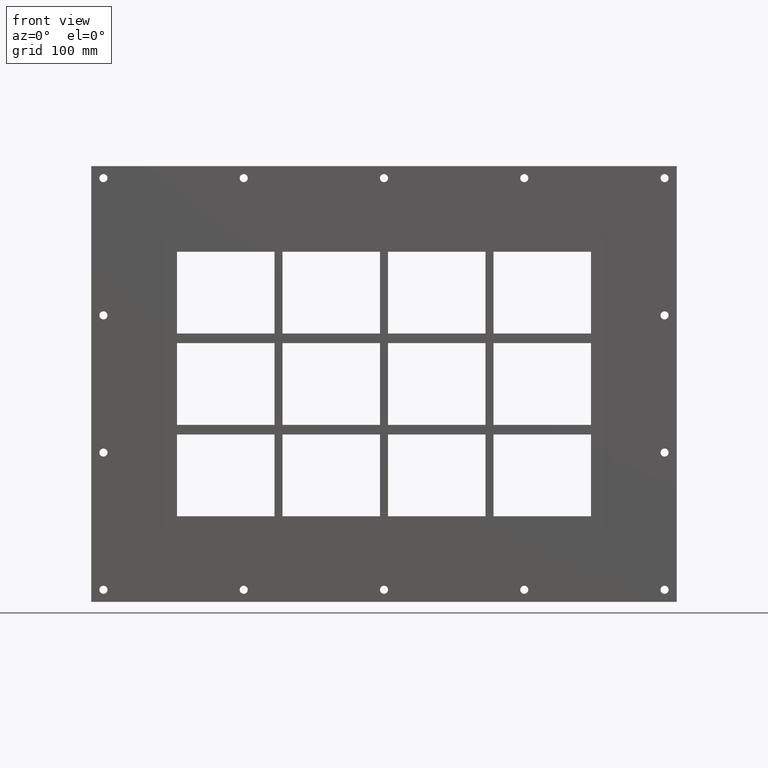
[diagram: clean part render]
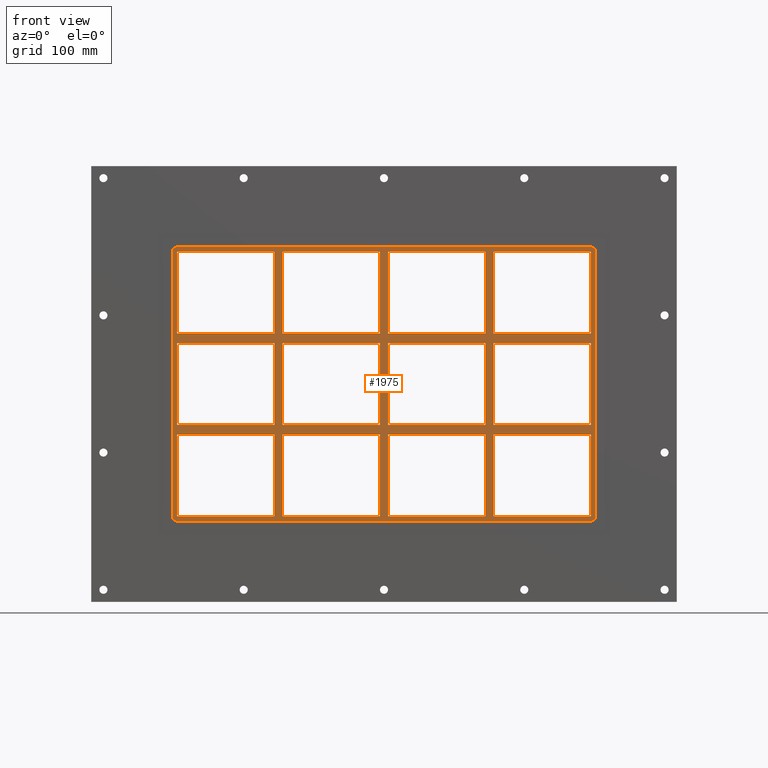
[diagram: same view with one face highlighted and labeled with its STEP entity id]
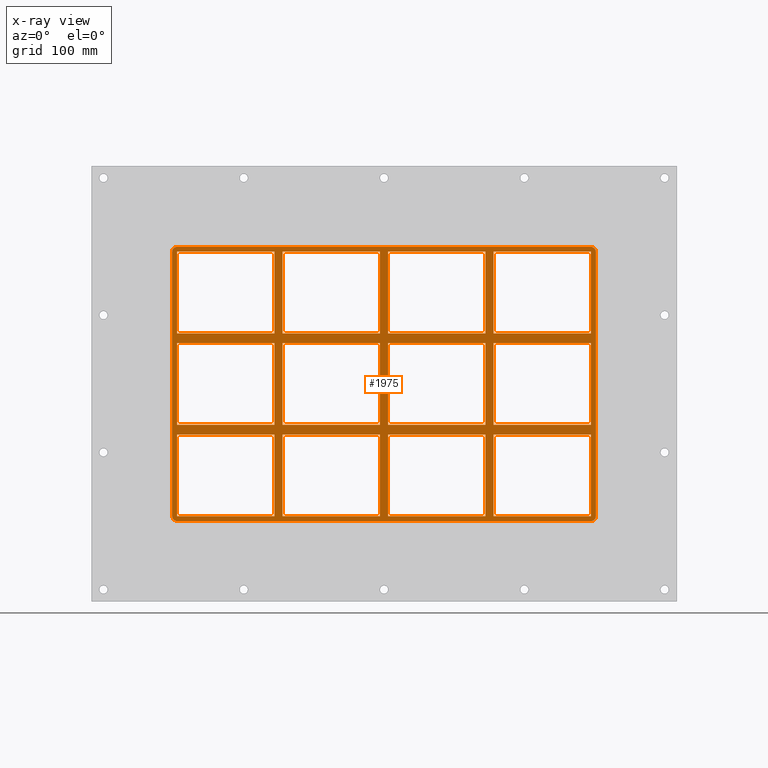
[diagram: x-ray of the same camera — body ghosted, the highlighted face saturated]
A machine part, front view. The second image highlights one B-rep face of the part: STEP entity #1975.
The next image is the same camera in x-ray: the body ghosted, the highlighted face saturated — about 0% of this face is hidden behind the body in this view.
In plain terms, the highlighted planar face has unit normal (0, 1, 0).
Its self-contained STEP definition (entity closure, byte-faithful):
#465=CARTESIAN_POINT('',(-135.50000000000136,-3.0,50.499999999990628));
#466=VERTEX_POINT('',#465);
#475=CARTESIAN_POINT('',(-255.99999999999972,-3.0,50.499999999990628));
#476=VERTEX_POINT('',#475);
#477=CARTESIAN_POINT('',(-135.50000000000136,-3.0,50.499999999990649));
#478=DIRECTION('',(-1.0,0.0,0.0));
#479=VECTOR('',#478,120.49999999999841);
#480=LINE('',#477,#479);
#481=EDGE_CURVE('',#466,#476,#480,.T.);
#505=CARTESIAN_POINT('',(-5.00000000000135,-3.0,50.499999999990671));
#506=VERTEX_POINT('',#505);
#515=CARTESIAN_POINT('',(-125.49999999999272,-3.0,50.499999999990649));
#516=VERTEX_POINT('',#515);
#517=CARTESIAN_POINT('',(-5.000000000001364,-3.0,50.499999999990678));
#518=DIRECTION('',(-1.0,0.0,0.0));
#519=VECTOR('',#518,120.49999999999136);
#520=LINE('',#517,#519);
#521=EDGE_CURVE('',#506,#516,#520,.T.);
#547=CARTESIAN_POINT('',(135.50000000000728,-3.0,50.499999999990699));
#548=VERTEX_POINT('',#547);
#563=CARTESIAN_POINT('',(256.00000000000364,-3.0,50.49999999999072));
#564=VERTEX_POINT('',#563);
#571=CARTESIAN_POINT('',(256.00000000000364,-3.0,50.49999999999072));
#572=DIRECTION('',(-1.0,0.0,0.0));
#573=VECTOR('',#572,120.49999999999636);
#574=LINE('',#571,#573);
#575=EDGE_CURVE('',#564,#548,#574,.T.);
#585=CARTESIAN_POINT('',(125.49999999999866,-3.0,50.499999999990692));
#586=VERTEX_POINT('',#585);
#595=CARTESIAN_POINT('',(5.000000000007283,-3.0,50.499999999990671));
#596=VERTEX_POINT('',#595);
#597=CARTESIAN_POINT('',(125.49999999999866,-3.0,50.499999999990699));
#598=DIRECTION('',(-1.0,0.0,0.0));
#599=VECTOR('',#598,120.49999999999139);
#600=LINE('',#597,#599);
#601=EDGE_CURVE('',#586,#596,#600,.T.);
#627=CARTESIAN_POINT('',(-135.50000000000136,-3.0,62.499999999999893));
#628=VERTEX_POINT('',#627);
#643=CARTESIAN_POINT('',(-255.99999999999972,-3.0,62.499999999999893));
#644=VERTEX_POINT('',#643);
#651=CARTESIAN_POINT('',(-255.99999999999972,-3.0,62.499999999999893));
#652=DIRECTION('',(1.0,0.0,0.0));
#653=VECTOR('',#652,120.49999999999838);
#654=LINE('',#651,#653);
#655=EDGE_CURVE('',#644,#628,#654,.T.);
#665=CARTESIAN_POINT('',(135.50000000000728,-3.0,62.499999999999893));
#666=VERTEX_POINT('',#665);
#675=CARTESIAN_POINT('',(255.99999999999991,-3.0,62.499999999999893));
#676=VERTEX_POINT('',#675);
#677=CARTESIAN_POINT('',(135.50000000000733,-3.0,62.499999999999893));
#678=DIRECTION('',(1.0,0.0,0.0));
#679=VECTOR('',#678,120.49999999999255);
#680=LINE('',#677,#679);
#681=EDGE_CURVE('',#666,#676,#680,.T.);
#707=CARTESIAN_POINT('',(-5.00000000000135,-3.0,62.499999999999893));
#708=VERTEX_POINT('',#707);
#723=CARTESIAN_POINT('',(-125.49999999999272,-3.0,62.499999999999893));
#724=VERTEX_POINT('',#723);
#731=CARTESIAN_POINT('',(-125.49999999999272,-3.0,62.499999999999893));
#732=DIRECTION('',(1.0,0.0,0.0));
#733=VECTOR('',#732,120.49999999999139);
#734=LINE('',#731,#733);
#735=EDGE_CURVE('',#724,#708,#734,.T.);
#747=CARTESIAN_POINT('',(125.49999999999862,-3.0,62.499999999999893));
#748=VERTEX_POINT('',#747);
#763=CARTESIAN_POINT('',(5.000000000007283,-3.0,62.499999999999893));
#764=VERTEX_POINT('',#763);
#771=CARTESIAN_POINT('',(5.000000000007276,-3.0,62.499999999999893));
#772=DIRECTION('',(1.0,0.0,0.0));
#773=VECTOR('',#772,120.49999999999136);
#774=LINE('',#771,#773);
#775=EDGE_CURVE('',#764,#748,#774,.T.);
#794=CARTESIAN_POINT('',(-256.0,-3.0,163.49999999999997));
#795=VERTEX_POINT('',#794);
#802=CARTESIAN_POINT('',(-256.0,-3.0,62.499999999999886));
#803=DIRECTION('',(0.0,0.0,1.0));
#804=VECTOR('',#803,101.00000000000009);
#805=LINE('',#802,#804);
#806=EDGE_CURVE('',#644,#795,#805,.T.);
#825=CARTESIAN_POINT('',(255.99999999999991,-3.0,-50.500000000000114));
#826=VERTEX_POINT('',#825);
#833=CARTESIAN_POINT('',(256.0,-3.0,50.499999999990706));
#834=DIRECTION('',(0.0,0.0,-1.0));
#835=VECTOR('',#834,100.99999999999082);
#836=LINE('',#833,#835);
#837=EDGE_CURVE('',#564,#826,#836,.T.);
#848=CARTESIAN_POINT('',(256.0,-3.0,163.49999999999997));
#849=VERTEX_POINT('',#848);
#850=CARTESIAN_POINT('',(256.0,-3.0,163.49999999999997));
#851=DIRECTION('',(0.0,0.0,-1.0));
#852=VECTOR('',#851,101.00000000000009);
#853=LINE('',#850,#852);
#854=EDGE_CURVE('',#849,#676,#853,.T.);
#879=CARTESIAN_POINT('',(125.49999999999864,-3.0,163.49999999999997));
#880=VERTEX_POINT('',#879);
#881=CARTESIAN_POINT('',(125.49999999999865,-3.0,62.499999999999886));
#882=DIRECTION('',(0.0,0.0,1.0));
#883=VECTOR('',#882,101.00000000000006);
#884=LINE('',#881,#883);
#885=EDGE_CURVE('',#748,#880,#884,.T.);
#918=CARTESIAN_POINT('',(135.50000000000728,-3.0,163.49999999999997));
#919=VERTEX_POINT('',#918);
#926=CARTESIAN_POINT('',(135.50000000000728,-3.0,163.49999999999997));
#927=DIRECTION('',(0.0,0.0,-1.0));
#928=VECTOR('',#927,101.00000000000009);
#929=LINE('',#926,#928);
#930=EDGE_CURVE('',#919,#666,#929,.T.);
#941=CARTESIAN_POINT('',(-5.000000000001368,-3.0,163.49999999999997));
#942=VERTEX_POINT('',#941);
#943=CARTESIAN_POINT('',(-5.000000000001351,-3.0,62.499999999999886));
#944=DIRECTION('',(0.0,0.0,1.0));
#945=VECTOR('',#944,101.00000000000006);
#946=LINE('',#943,#945);
#947=EDGE_CURVE('',#708,#942,#946,.T.);
#980=CARTESIAN_POINT('',(5.000000000007283,-3.0,163.49999999999997));
#981=VERTEX_POINT('',#980);
#988=CARTESIAN_POINT('',(5.000000000007283,-3.0,163.49999999999997));
#989=DIRECTION('',(0.0,0.0,-1.0));
#990=VECTOR('',#989,101.00000000000009);
#991=LINE('',#988,#990);
#992=EDGE_CURVE('',#981,#764,#991,.T.);
#1003=CARTESIAN_POINT('',(-135.50000000000136,-3.0,163.49999999999997));
#1004=VERTEX_POINT('',#1003);
#1005=CARTESIAN_POINT('',(-135.50000000000134,-3.0,62.499999999999886));
#1006=DIRECTION('',(0.0,0.0,1.0));
#1007=VECTOR('',#1006,101.00000000000006);
#1008=LINE('',#1005,#1007);
#1009=EDGE_CURVE('',#628,#1004,#1008,.T.);
#1042=CARTESIAN_POINT('',(-135.50000000000134,-3.0,-50.500000000000114));
#1043=VERTEX_POINT('',#1042);
#1050=CARTESIAN_POINT('',(-135.50000000000134,-3.0,-50.500000000000114));
#1051=DIRECTION('',(0.0,0.0,1.0));
#1052=VECTOR('',#1051,100.99999999999073);
#1053=LINE('',#1050,#1052);
#1054=EDGE_CURVE('',#1043,#466,#1053,.T.);
#1073=CARTESIAN_POINT('',(-125.49999999999272,-3.0,163.49999999999997));
#1074=VERTEX_POINT('',#1073);
#1081=CARTESIAN_POINT('',(-125.49999999999272,-3.0,163.49999999999997));
#1082=DIRECTION('',(0.0,0.0,-1.0));
#1083=VECTOR('',#1082,101.00000000000009);
#1084=LINE('',#1081,#1083);
#1085=EDGE_CURVE('',#1074,#724,#1084,.T.);
#1439=CARTESIAN_POINT('',(125.49999999999868,-3.0,-50.500000000000114));
#1440=VERTEX_POINT('',#1439);
#1447=CARTESIAN_POINT('',(125.49999999999868,-3.0,-50.500000000000114));
#1448=DIRECTION('',(0.0,0.0,1.0));
#1449=VECTOR('',#1448,100.99999999999079);
#1450=LINE('',#1447,#1449);
#1451=EDGE_CURVE('',#1440,#586,#1450,.T.);
#1461=CARTESIAN_POINT('',(125.49999999999868,-3.0,-62.500000000009308));
#1462=VERTEX_POINT('',#1461);
#1470=CARTESIAN_POINT('',(125.49999999999869,-3.0,-163.50000000000006));
#1471=VERTEX_POINT('',#1470);
#1478=CARTESIAN_POINT('',(125.49999999999869,-3.0,-163.50000000000006));
#1479=DIRECTION('',(0.0,0.0,1.0));
#1480=VECTOR('',#1479,100.99999999999073);
#1481=LINE('',#1478,#1480);
#1482=EDGE_CURVE('',#1471,#1462,#1481,.T.);
#1493=CARTESIAN_POINT('',(135.50000000000728,-3.0,-50.500000000000114));
#1494=VERTEX_POINT('',#1493);
#1495=CARTESIAN_POINT('',(135.50000000000728,-3.0,50.499999999990692));
#1496=DIRECTION('',(0.0,0.0,-1.0));
#1497=VECTOR('',#1496,100.99999999999081);
#1498=LINE('',#1495,#1497);
#1499=EDGE_CURVE('',#548,#1494,#1498,.T.);
#1516=CARTESIAN_POINT('',(135.50000000000728,-3.0,-62.500000000009308));
#1517=VERTEX_POINT('',#1516);
#1524=CARTESIAN_POINT('',(135.50000000000728,-3.0,-163.49999999998431));
#1525=VERTEX_POINT('',#1524);
#1526=CARTESIAN_POINT('',(135.50000000000728,-3.0,-62.500000000009322));
#1527=DIRECTION('',(0.0,0.0,-1.0));
#1528=VECTOR('',#1527,100.99999999997496);
#1529=LINE('',#1526,#1528);
#1530=EDGE_CURVE('',#1517,#1525,#1529,.T.);
#1549=CARTESIAN_POINT('',(-5.000000000001333,-3.0,-50.500000000000114));
#1550=VERTEX_POINT('',#1549);
#1557=CARTESIAN_POINT('',(-5.000000000001333,-3.0,-50.500000000000114));
#1558=DIRECTION('',(0.0,0.0,1.0));
#1559=VECTOR('',#1558,100.99999999999076);
#1560=LINE('',#1557,#1559);
#1561=EDGE_CURVE('',#1550,#506,#1560,.T.);
#1571=CARTESIAN_POINT('',(-5.000000000001331,-3.0,-62.500000000009344));
#1572=VERTEX_POINT('',#1571);
#1580=CARTESIAN_POINT('',(-5.000000000001315,-3.0,-163.50000000000006));
#1581=VERTEX_POINT('',#1580);
#1588=CARTESIAN_POINT('',(-5.000000000001315,-3.0,-163.50000000000006));
#1589=DIRECTION('',(0.0,0.0,1.0));
#1590=VECTOR('',#1589,100.99999999999071);
#1591=LINE('',#1588,#1590);
#1592=EDGE_CURVE('',#1581,#1572,#1591,.T.);
#1603=CARTESIAN_POINT('',(5.000000000007283,-3.0,-50.500000000000114));
#1604=VERTEX_POINT('',#1603);
#1605=CARTESIAN_POINT('',(5.000000000007283,-3.0,50.499999999990649));
#1606=DIRECTION('',(0.0,0.0,-1.0));
#1607=VECTOR('',#1606,100.99999999999076);
#1608=LINE('',#1605,#1607);
#1609=EDGE_CURVE('',#596,#1604,#1608,.T.);
#1626=CARTESIAN_POINT('',(5.000000000007283,-3.0,-62.500000000009308));
#1627=VERTEX_POINT('',#1626);
#1634=CARTESIAN_POINT('',(5.000000000007283,-3.0,-163.49999999998431));
#1635=VERTEX_POINT('',#1634);
#1636=CARTESIAN_POINT('',(5.000000000007283,-3.0,-62.500000000009322));
#1637=DIRECTION('',(0.0,0.0,-1.0));
#1638=VECTOR('',#1637,100.99999999997496);
#1639=LINE('',#1636,#1638);
#1640=EDGE_CURVE('',#1627,#1635,#1639,.T.);
#1659=CARTESIAN_POINT('',(-125.49999999999272,-3.0,-163.49999999998431));
#1660=VERTEX_POINT('',#1659);
#1667=CARTESIAN_POINT('',(-5.000000000001307,-3.0,-163.50000000000006));
#1668=DIRECTION('',(-1.0,0.0,0.0));
#1669=VECTOR('',#1668,120.49999999999142);
#1670=LINE('',#1667,#1669);
#1671=EDGE_CURVE('',#1581,#1660,#1670,.T.);
#1684=CARTESIAN_POINT('',(125.49999999999869,-3.0,-163.50000000000006));
#1685=DIRECTION('',(-1.0,0.0,0.0));
#1686=VECTOR('',#1685,120.49999999999142);
#1687=LINE('',#1684,#1686);
#1688=EDGE_CURVE('',#1471,#1635,#1687,.T.);
#1699=CARTESIAN_POINT('',(256.0,-3.0,-163.50000000000006));
#1700=VERTEX_POINT('',#1699);
#1701=CARTESIAN_POINT('',(256.0,-3.0,-163.50000000000006));
#1702=DIRECTION('',(-1.0,0.0,0.0));
#1703=VECTOR('',#1702,120.49999999999272);
#1704=LINE('',#1701,#1703);
#1705=EDGE_CURVE('',#1700,#1525,#1704,.T.);
#1717=CARTESIAN_POINT('',(0.0,-3.0,0.0));
#1718=DIRECTION('',(0.0,1.0,0.0));
#1719=DIRECTION('',(0.0,0.0,1.0));
#1720=AXIS2_PLACEMENT_3D('',#1717,#1718,#1719);
#1721=PLANE('',#1720);
#1722=CARTESIAN_POINT('',(262.0,-3.0,-163.5));
#1723=VERTEX_POINT('',#1722);
#1724=CARTESIAN_POINT('',(256.0,-3.0,-169.50000000000003));
#1725=VERTEX_POINT('',#1724);
#1726=CARTESIAN_POINT('',(256.0,-3.0,-163.5));
#1727=DIRECTION('',(0.0,1.0,0.0));
#1728=DIRECTION('',(0.707106781186548,0.0,-0.707106781186548));
#1729=AXIS2_PLACEMENT_3D('',#1726,#1727,#1728);
#1730=CIRCLE('',#1729,6.000000000000002);
#1731=EDGE_CURVE('',#1723,#1725,#1730,.T.);
#1732=ORIENTED_EDGE('',*,*,#1731,.F.);
#1733=CARTESIAN_POINT('',(262.0,-3.0,163.5));
#1734=VERTEX_POINT('',#1733);
#1735=CARTESIAN_POINT('',(262.0,-3.0,-163.50000000000003));
#1736=DIRECTION('',(0.0,0.0,1.0));
#1737=VECTOR('',#1736,327.0);
#1738=LINE('',#1735,#1737);
#1739=EDGE_CURVE('',#1723,#1734,#1738,.T.);
#1740=ORIENTED_EDGE('',*,*,#1739,.T.);
#1741=CARTESIAN_POINT('',(256.0,-3.0,169.50000000000003));
#1742=VERTEX_POINT('',#1741);
#1743=CARTESIAN_POINT('',(256.0,-3.0,163.5));
#1744=DIRECTION('',(0.0,1.0,0.0));
#1745=DIRECTION('',(0.707106781186548,0.0,0.707106781186548));
#1746=AXIS2_PLACEMENT_3D('',#1743,#1744,#1745);
#1747=CIRCLE('',#1746,6.000000000000002);
#1748=EDGE_CURVE('',#1742,#1734,#1747,.T.);
#1749=ORIENTED_EDGE('',*,*,#1748,.F.);
#1750=CARTESIAN_POINT('',(-256.0,-3.0,169.50000000000003));
#1751=VERTEX_POINT('',#1750);
#1752=CARTESIAN_POINT('',(256.0,-3.0,169.50000000000003));
#1753=DIRECTION('',(-1.0,0.0,0.0));
#1754=VECTOR('',#1753,512.0);
#1755=LINE('',#1752,#1754);
#1756=EDGE_CURVE('',#1742,#1751,#1755,.T.);
#1757=ORIENTED_EDGE('',*,*,#1756,.T.);
#1758=CARTESIAN_POINT('',(-262.0,-3.0,163.5));
#1759=VERTEX_POINT('',#1758);
#1760=CARTESIAN_POINT('',(-256.0,-3.0,163.5));
#1761=DIRECTION('',(0.0,1.0,0.0));
#1762=DIRECTION('',(-0.707106781186548,0.0,0.707106781186548));
#1763=AXIS2_PLACEMENT_3D('',#1760,#1761,#1762);
#1764=CIRCLE('',#1763,6.000000000000002);
#1765=EDGE_CURVE('',#1759,#1751,#1764,.T.);
#1766=ORIENTED_EDGE('',*,*,#1765,.F.);
#1767=CARTESIAN_POINT('',(-262.0,-3.0,-163.5));
#1768=VERTEX_POINT('',#1767);
#1769=CARTESIAN_POINT('',(-262.0,-3.0,163.50000000000003));
#1770=DIRECTION('',(0.0,0.0,-1.0));
#1771=VECTOR('',#1770,327.0);
#1772=LINE('',#1769,#1771);
#1773=EDGE_CURVE('',#1759,#1768,#1772,.T.);
#1774=ORIENTED_EDGE('',*,*,#1773,.T.);
#1775=CARTESIAN_POINT('',(-256.0,-3.0,-169.50000000000003));
#1776=VERTEX_POINT('',#1775);
#1777=CARTESIAN_POINT('',(-256.0,-3.0,-163.5));
#1778=DIRECTION('',(0.0,1.0,0.0));
#1779=DIRECTION('',(-0.707106781186548,0.0,-0.707106781186548));
#1780=AXIS2_PLACEMENT_3D('',#1777,#1778,#1779);
#1781=CIRCLE('',#1780,6.000000000000002);
#1782=EDGE_CURVE('',#1776,#1768,#1781,.T.);
#1783=ORIENTED_EDGE('',*,*,#1782,.F.);
#1784=CARTESIAN_POINT('',(-256.0,-3.0,-169.50000000000003));
#1785=DIRECTION('',(1.0,0.0,0.0));
#1786=VECTOR('',#1785,512.0);
#1787=LINE('',#1784,#1786);
#1788=EDGE_CURVE('',#1776,#1725,#1787,.T.);
#1789=ORIENTED_EDGE('',*,*,#1788,.T.);
#1790=EDGE_LOOP('',(#1732,#1740,#1749,#1757,#1766,#1774,#1783,#1789));
#1791=FACE_OUTER_BOUND('',#1790,.T.);
#1792=ORIENTED_EDGE('',*,*,#806,.T.);
#1793=CARTESIAN_POINT('',(-256.0,-3.0,163.5));
#1794=DIRECTION('',(1.0,0.0,0.0));
#1795=VECTOR('',#1794,120.49999999999864);
#1796=LINE('',#1793,#1795);
#1797=EDGE_CURVE('',#795,#1004,#1796,.T.);
#1798=ORIENTED_EDGE('',*,*,#1797,.T.);
#1799=ORIENTED_EDGE('',*,*,#1009,.F.);
#1800=ORIENTED_EDGE('',*,*,#655,.F.);
#1801=EDGE_LOOP('',(#1792,#1798,#1799,#1800));
#1802=FACE_BOUND('',#1801,.T.);
#1803=ORIENTED_EDGE('',*,*,#837,.T.);
#1804=CARTESIAN_POINT('',(135.50000000000733,-3.0,-50.500000000000114));
#1805=DIRECTION('',(1.0,0.0,0.0));
#1806=VECTOR('',#1805,120.49999999999255);
#1807=LINE('',#1804,#1806);
#1808=EDGE_CURVE('',#1494,#826,#1807,.T.);
#1809=ORIENTED_EDGE('',*,*,#1808,.F.);
#1810=ORIENTED_EDGE('',*,*,#1499,.F.);
#1811=ORIENTED_EDGE('',*,*,#575,.F.);
#1812=EDGE_LOOP('',(#1803,#1809,#1810,#1811));
#1813=FACE_BOUND('',#1812,.T.);
#1814=ORIENTED_EDGE('',*,*,#1451,.F.);
#1815=CARTESIAN_POINT('',(5.000000000007276,-3.0,-50.500000000000114));
#1816=DIRECTION('',(1.0,0.0,0.0));
#1817=VECTOR('',#1816,120.49999999999142);
#1818=LINE('',#1815,#1817);
#1819=EDGE_CURVE('',#1604,#1440,#1818,.T.);
#1820=ORIENTED_EDGE('',*,*,#1819,.F.);
#1821=ORIENTED_EDGE('',*,*,#1609,.F.);
#1822=ORIENTED_EDGE('',*,*,#601,.F.);
#1823=EDGE_LOOP('',(#1814,#1820,#1821,#1822));
#1824=FACE_BOUND('',#1823,.T.);
#1825=ORIENTED_EDGE('',*,*,#1561,.F.);
#1826=CARTESIAN_POINT('',(-125.49999999999272,-3.0,-50.500000000000114));
#1827=VERTEX_POINT('',#1826);
#1828=CARTESIAN_POINT('',(-125.49999999999272,-3.0,-50.500000000000114));
#1829=DIRECTION('',(1.0,0.0,0.0));
#1830=VECTOR('',#1829,120.49999999999139);
#1831=LINE('',#1828,#1830);
#1832=EDGE_CURVE('',#1827,#1550,#1831,.T.);
#1833=ORIENTED_EDGE('',*,*,#1832,.F.);
#1834=CARTESIAN_POINT('',(-125.49999999999272,-3.0,50.499999999990635));
#1835=DIRECTION('',(0.0,0.0,-1.0));
#1836=VECTOR('',#1835,100.99999999999075);
#1837=LINE('',#1834,#1836);
#1838=EDGE_CURVE('',#516,#1827,#1837,.T.);
#1839=ORIENTED_EDGE('',*,*,#1838,.F.);
#1840=ORIENTED_EDGE('',*,*,#521,.F.);
#1841=EDGE_LOOP('',(#1825,#1833,#1839,#1840));
#1842=FACE_BOUND('',#1841,.T.);
#1843=ORIENTED_EDGE('',*,*,#775,.F.);
#1844=ORIENTED_EDGE('',*,*,#992,.F.);
#1845=CARTESIAN_POINT('',(5.000000000007276,-3.0,163.5));
#1846=DIRECTION('',(1.0,0.0,0.0));
#1847=VECTOR('',#1846,120.49999999999139);
#1848=LINE('',#1845,#1847);
#1849=EDGE_CURVE('',#981,#880,#1848,.T.);
#1850=ORIENTED_EDGE('',*,*,#1849,.T.);
#1851=ORIENTED_EDGE('',*,*,#885,.F.);
#1852=EDGE_LOOP('',(#1843,#1844,#1850,#1851));
#1853=FACE_BOUND('',#1852,.T.);
#1854=ORIENTED_EDGE('',*,*,#735,.F.);
#1855=ORIENTED_EDGE('',*,*,#1085,.F.);
#1856=CARTESIAN_POINT('',(-125.49999999999272,-3.0,163.5));
#1857=DIRECTION('',(1.0,0.0,0.0));
#1858=VECTOR('',#1857,120.49999999999136);
#1859=LINE('',#1856,#1858);
#1860=EDGE_CURVE('',#1074,#942,#1859,.T.);
#1861=ORIENTED_EDGE('',*,*,#1860,.T.);
#1862=ORIENTED_EDGE('',*,*,#947,.F.);
#1863=EDGE_LOOP('',(#1854,#1855,#1861,#1862));
#1864=FACE_BOUND('',#1863,.T.);
#1865=ORIENTED_EDGE('',*,*,#481,.F.);
#1866=ORIENTED_EDGE('',*,*,#1054,.F.);
#1867=CARTESIAN_POINT('',(-255.99999999999972,-3.0,-50.500000000000114));
#1868=VERTEX_POINT('',#1867);
#1869=CARTESIAN_POINT('',(-255.99999999999972,-3.0,-50.500000000000114));
#1870=DIRECTION('',(1.0,0.0,0.0));
#1871=VECTOR('',#1870,120.49999999999841);
#1872=LINE('',#1869,#1871);
#1873=EDGE_CURVE('',#1868,#1043,#1872,.T.);
#1874=ORIENTED_EDGE('',*,*,#1873,.F.);
#1875=CARTESIAN_POINT('',(-256.0,-3.0,-50.500000000000114));
#1876=DIRECTION('',(0.0,0.0,1.0));
#1877=VECTOR('',#1876,100.99999999999073);
#1878=LINE('',#1875,#1877);
#1879=EDGE_CURVE('',#1868,#476,#1878,.T.);
#1880=ORIENTED_EDGE('',*,*,#1879,.T.);
#1881=EDGE_LOOP('',(#1865,#1866,#1874,#1880));
#1882=FACE_BOUND('',#1881,.T.);
#1883=ORIENTED_EDGE('',*,*,#681,.F.);
#1884=ORIENTED_EDGE('',*,*,#930,.F.);
#1885=CARTESIAN_POINT('',(135.50000000000728,-3.0,163.5));
#1886=DIRECTION('',(1.0,0.0,0.0));
#1887=VECTOR('',#1886,120.49999999999278);
#1888=LINE('',#1885,#1887);
#1889=EDGE_CURVE('',#919,#849,#1888,.T.);
#1890=ORIENTED_EDGE('',*,*,#1889,.T.);
#1891=ORIENTED_EDGE('',*,*,#854,.T.);
#1892=EDGE_LOOP('',(#1883,#1884,#1890,#1891));
#1893=FACE_BOUND('',#1892,.T.);
#1894=ORIENTED_EDGE('',*,*,#1688,.T.);
#1895=ORIENTED_EDGE('',*,*,#1640,.F.);
#1896=CARTESIAN_POINT('',(125.49999999999866,-3.0,-62.500000000009315));
#1897=DIRECTION('',(-1.0,0.0,0.0));
#1898=VECTOR('',#1897,120.49999999999139);
#1899=LINE('',#1896,#1898);
#1900=EDGE_CURVE('',#1462,#1627,#1899,.T.);
#1901=ORIENTED_EDGE('',*,*,#1900,.F.);
#1902=ORIENTED_EDGE('',*,*,#1482,.F.);
#1903=EDGE_LOOP('',(#1894,#1895,#1901,#1902));
#1904=FACE_BOUND('',#1903,.T.);
#1905=ORIENTED_EDGE('',*,*,#1671,.T.);
#1906=CARTESIAN_POINT('',(-125.49999999999272,-3.0,-62.500000000009351));
#1907=VERTEX_POINT('',#1906);
#1908=CARTESIAN_POINT('',(-125.49999999999272,-3.0,-62.500000000009351));
#1909=DIRECTION('',(0.0,0.0,-1.0));
#1910=VECTOR('',#1909,100.99999999997493);
#1911=LINE('',#1908,#1910);
#1912=EDGE_CURVE('',#1907,#1660,#1911,.T.);
#1913=ORIENTED_EDGE('',*,*,#1912,.F.);
#1914=CARTESIAN_POINT('',(-5.000000000001307,-3.0,-62.500000000009337));
#1915=DIRECTION('',(-1.0,0.0,0.0));
#1916=VECTOR('',#1915,120.49999999999142);
#1917=LINE('',#1914,#1916);
#1918=EDGE_CURVE('',#1572,#1907,#1917,.T.);
#1919=ORIENTED_EDGE('',*,*,#1918,.F.);
#1920=ORIENTED_EDGE('',*,*,#1592,.F.);
#1921=EDGE_LOOP('',(#1905,#1913,#1919,#1920));
#1922=FACE_BOUND('',#1921,.T.);
#1923=ORIENTED_EDGE('',*,*,#1530,.F.);
#1924=CARTESIAN_POINT('',(256.00000000000364,-3.0,-62.500000000009294));
#1925=VERTEX_POINT('',#1924);
#1926=CARTESIAN_POINT('',(256.00000000000364,-3.0,-62.500000000009294));
#1927=DIRECTION('',(-1.0,0.0,0.0));
#1928=VECTOR('',#1927,120.49999999999636);
#1929=LINE('',#1926,#1928);
#1930=EDGE_CURVE('',#1925,#1517,#1929,.T.);
#1931=ORIENTED_EDGE('',*,*,#1930,.F.);
#1932=CARTESIAN_POINT('',(256.0,-3.0,-62.500000000009294));
#1933=DIRECTION('',(0.0,0.0,-1.0));
#1934=VECTOR('',#1933,100.99999999999076);
#1935=LINE('',#1932,#1934);
#1936=EDGE_CURVE('',#1925,#1700,#1935,.T.);
#1937=ORIENTED_EDGE('',*,*,#1936,.T.);
#1938=ORIENTED_EDGE('',*,*,#1705,.T.);
#1939=EDGE_LOOP('',(#1923,#1931,#1937,#1938));
#1940=FACE_BOUND('',#1939,.T.);
#1941=CARTESIAN_POINT('',(-135.50000000000131,-3.0,-62.500000000009365));
#1942=VERTEX_POINT('',#1941);
#1943=CARTESIAN_POINT('',(-255.99999999999972,-3.0,-62.500000000009379));
#1944=VERTEX_POINT('',#1943);
#1945=CARTESIAN_POINT('',(-135.50000000000131,-3.0,-62.500000000009365));
#1946=DIRECTION('',(-1.0,0.0,0.0));
#1947=VECTOR('',#1946,120.49999999999847);
#1948=LINE('',#1945,#1947);
#1949=EDGE_CURVE('',#1942,#1944,#1948,.T.);
#1950=ORIENTED_EDGE('',*,*,#1949,.F.);
#1951=CARTESIAN_POINT('',(-135.50000000000131,-3.0,-163.50000000000006));
#1952=VERTEX_POINT('',#1951);
#1953=CARTESIAN_POINT('',(-135.50000000000131,-3.0,-163.50000000000006));
#1954=DIRECTION('',(0.0,0.0,1.0));
#1955=VECTOR('',#1954,100.99999999999069);
#1956=LINE('',#1953,#1955);
#1957=EDGE_CURVE('',#1952,#1942,#1956,.T.);
#1958=ORIENTED_EDGE('',*,*,#1957,.F.);
#1959=CARTESIAN_POINT('',(-256.0,-3.0,-163.50000000000006));
#1960=VERTEX_POINT('',#1959);
#1961=CARTESIAN_POINT('',(-135.50000000000131,-3.0,-163.50000000000006));
#1962=DIRECTION('',(-1.0,0.0,0.0));
#1963=VECTOR('',#1962,120.49999999999875);
#1964=LINE('',#1961,#1963);
#1965=EDGE_CURVE('',#1952,#1960,#1964,.T.);
#1966=ORIENTED_EDGE('',*,*,#1965,.T.);
#1967=CARTESIAN_POINT('',(-256.0,-3.0,-163.50000000000006));
#1968=DIRECTION('',(0.0,0.0,1.0));
#1969=VECTOR('',#1968,100.99999999999068);
#1970=LINE('',#1967,#1969);
#1971=EDGE_CURVE('',#1960,#1944,#1970,.T.);
#1972=ORIENTED_EDGE('',*,*,#1971,.T.);
#1973=EDGE_LOOP('',(#1950,#1958,#1966,#1972));
#1974=FACE_BOUND('',#1973,.T.);
#1975=ADVANCED_FACE('',(#1791,#1802,#1813,#1824,#1842,#1853,#1864,#1882,#1893,#1904,#1922,#1940,#1974),#1721,.F.);